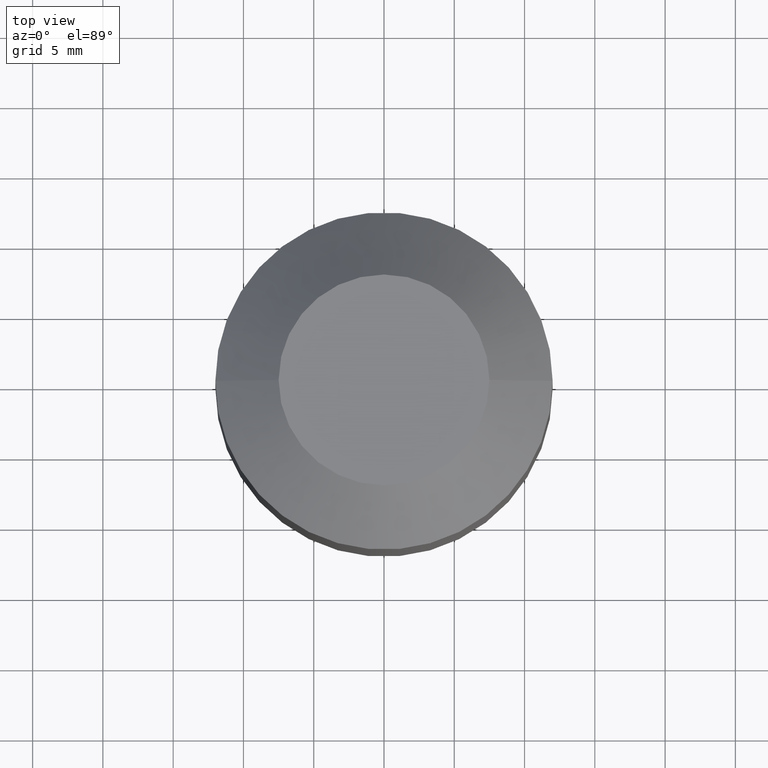
[diagram: clean part render]
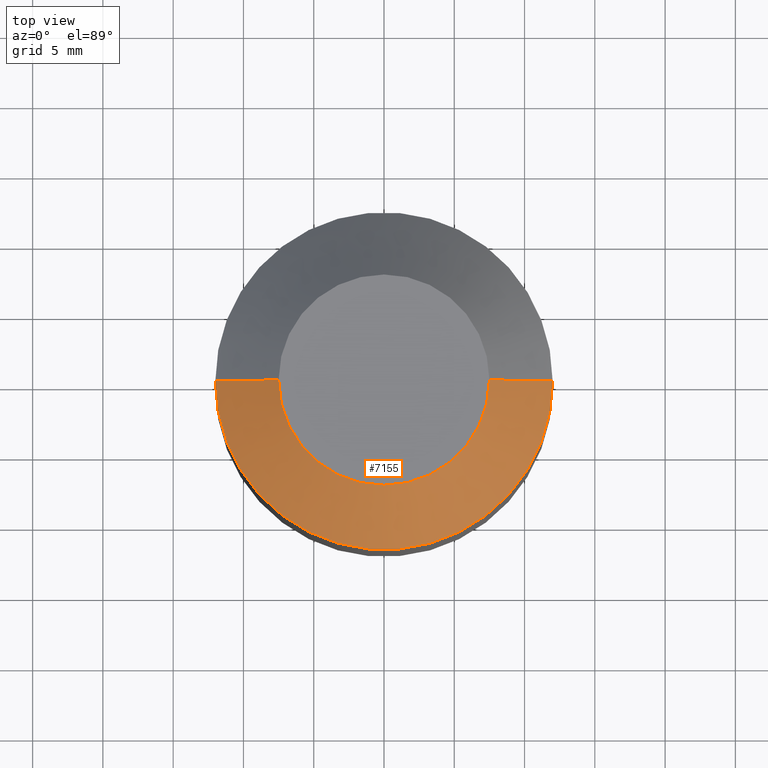
[diagram: same view with one face highlighted and labeled with its STEP entity id]
A machine part, top view. The second image highlights one B-rep face of the part: STEP entity #7155.
In plain terms, the highlighted conical surface has half-angle 45 deg.
Its self-contained STEP definition (entity closure, byte-faithful):
#218 = EDGE_CURVE ( 'NONE', #20757, #11263, #10924, .T. ) ;
#608 = DIRECTION ( 'NONE',  ( 0.000000000000000000, 0.000000000000000000, -1.000000000000000000 ) ) ;
#663 = CIRCLE ( 'NONE', #18554, 7.500000000000000000 ) ;
#680 = VERTEX_POINT ( 'NONE', #8597 ) ;
#1830 = VECTOR ( 'NONE', #20703, 1000.000000000000000 ) ;
#1836 = ORIENTED_EDGE ( 'NONE', *, *, #218, .T. ) ;
#2614 = EDGE_LOOP ( 'NONE', ( #11248, #19667, #1836, #16023 ) ) ;
#3165 = CARTESIAN_POINT ( 'NONE',  ( -11.99999999999998401, 0.000000000000000000, 34.95000000000000284 ) ) ;
#5199 = AXIS2_PLACEMENT_3D ( 'NONE', #19872, #608, #6146 ) ;
#6146 = DIRECTION ( 'NONE',  ( 1.000000000000000000, 0.000000000000000000, 0.000000000000000000 ) ) ;
#6856 = LINE ( 'NONE', #6962, #1830 ) ;
#6911 = CARTESIAN_POINT ( 'NONE',  ( -7.500000000000000000, 0.000000000000000000, 39.44999999999999574 ) ) ;
#6962 = CARTESIAN_POINT ( 'NONE',  ( 7.500000000000000000, 9.184850993605147944E-16, 39.44999999999999574 ) ) ;
#7155 = ADVANCED_FACE ( 'NONE', ( #16592 ), #21842, .T. ) ;
#8597 = CARTESIAN_POINT ( 'NONE',  ( 7.500000000000000000, 1.194030629168668286E-15, 39.44999999999999574 ) ) ;
#9369 = DIRECTION ( 'NONE',  ( 0.000000000000000000, 0.000000000000000000, 1.000000000000000000 ) ) ;
#10924 = LINE ( 'NONE', #20866, #14721 ) ;
#10999 = DIRECTION ( 'NONE',  ( 0.000000000000000000, 0.000000000000000000, -1.000000000000000000 ) ) ;
#11248 = ORIENTED_EDGE ( 'NONE', *, *, #15973, .F. ) ;
#11263 = VERTEX_POINT ( 'NONE', #3165 ) ;
#11445 = CARTESIAN_POINT ( 'NONE',  ( 0.000000000000000000, 0.000000000000000000, 39.44999999999999574 ) ) ;
#14079 = CIRCLE ( 'NONE', #5199, 12.00000000000000000 ) ;
#14373 = DIRECTION ( 'NONE',  ( 1.000000000000000000, 0.000000000000000000, 0.000000000000000000 ) ) ;
#14721 = VECTOR ( 'NONE', #16061, 1000.000000000000000 ) ;
#15973 = EDGE_CURVE ( 'NONE', #680, #18169, #6856, .T. ) ;
#16023 = ORIENTED_EDGE ( 'NONE', *, *, #20044, .F. ) ;
#16061 = DIRECTION ( 'NONE',  ( -0.7071067811865465735, 0.000000000000000000, -0.7071067811865485719 ) ) ;
#16229 = CARTESIAN_POINT ( 'NONE',  ( 11.99999999999998401, 1.469576158976821778E-15, 34.95000000000000284 ) ) ;
#16592 = FACE_OUTER_BOUND ( 'NONE', #2614, .T. ) ;
#17622 = CARTESIAN_POINT ( 'NONE',  ( 0.000000000000000000, 0.000000000000000000, 39.44999999999999574 ) ) ;
#17807 = DIRECTION ( 'NONE',  ( -1.000000000000000000, 0.000000000000000000, 0.000000000000000000 ) ) ;
#18169 = VERTEX_POINT ( 'NONE', #16229 ) ;
#18554 = AXIS2_PLACEMENT_3D ( 'NONE', #17622, #9369, #14373 ) ;
#19667 = ORIENTED_EDGE ( 'NONE', *, *, #21578, .F. ) ;
#19688 = AXIS2_PLACEMENT_3D ( 'NONE', #11445, #10999, #17807 ) ;
#19872 = CARTESIAN_POINT ( 'NONE',  ( 0.000000000000000000, 0.000000000000000000, 34.95000000000000284 ) ) ;
#20044 = EDGE_CURVE ( 'NONE', #18169, #11263, #14079, .T. ) ;
#20703 = DIRECTION ( 'NONE',  ( 0.7071067811865465735, 8.659560562354920532E-17, -0.7071067811865485719 ) ) ;
#20757 = VERTEX_POINT ( 'NONE', #6911 ) ;
#20866 = CARTESIAN_POINT ( 'NONE',  ( -7.500000000000000000, 0.000000000000000000, 39.44999999999999574 ) ) ;
#21578 = EDGE_CURVE ( 'NONE', #20757, #680, #663, .T. ) ;
#21842 = CONICAL_SURFACE ( 'NONE', #19688, 7.500000000000000000, 0.7853981633974469467 ) ;